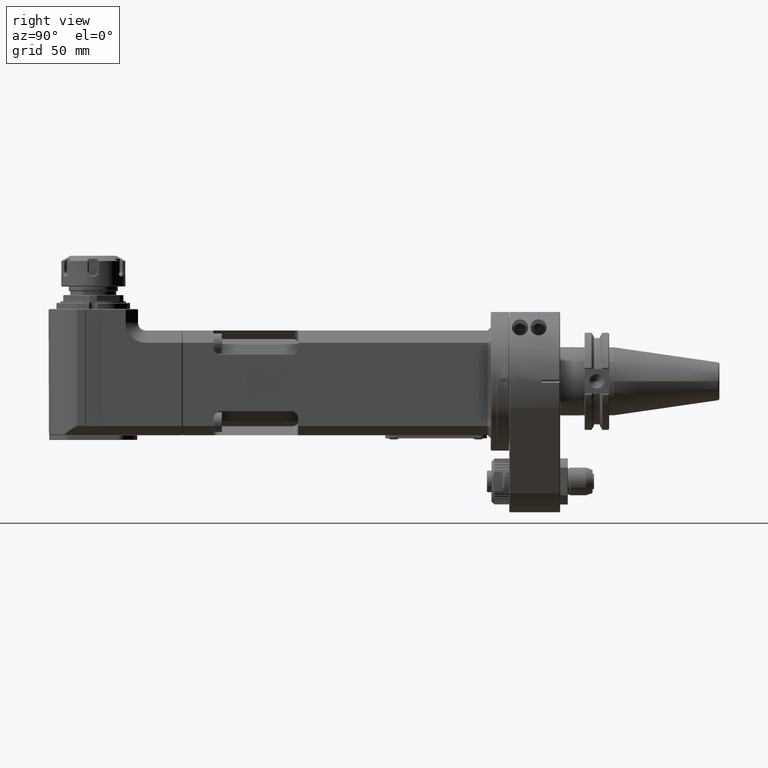
[diagram: clean part render]
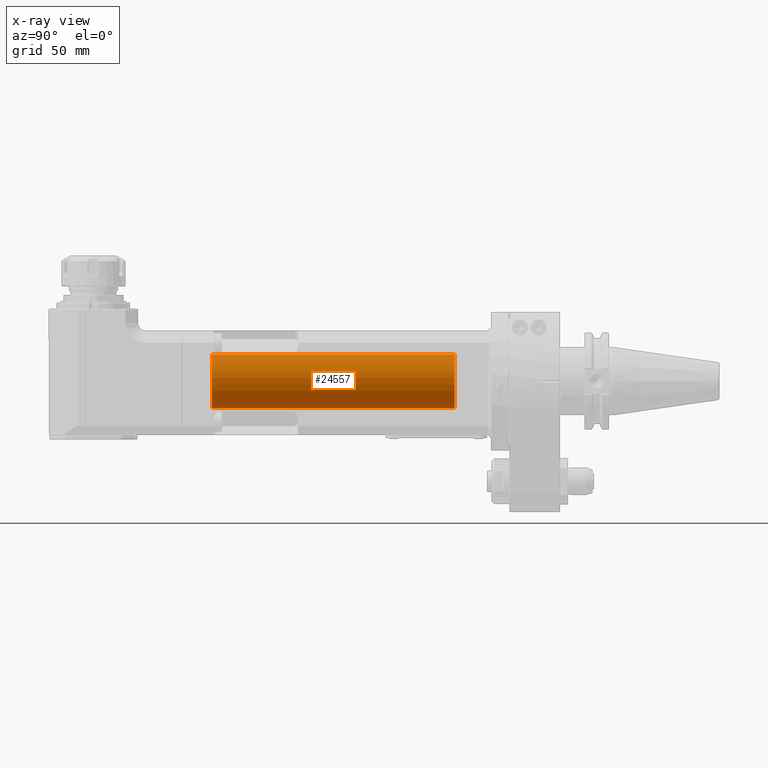
[diagram: x-ray — body ghosted, one internal face saturated and labeled with its STEP entity id]
A machine part, right view, then the same camera in x-ray: the body is ghosted and one INTERNAL B-rep face — a face not visible from any outside direction — is saturated and labeled: STEP entity #24557.
In plain terms, the highlighted cylindrical surface (bore or boss wall) has radius 17.5 mm, axis along (-0, 1, 0).
Its self-contained STEP definition (entity closure, byte-faithful):
#2266=FACE_OUTER_BOUND('',#3798,.T.);
#3798=EDGE_LOOP('',(#18141,#18142,#18143,#18144));
#5534=CIRCLE('',#26404,17.5);
#5535=CIRCLE('',#26406,17.5);
#6759=LINE('',#38608,#8792);
#8792=VECTOR('',#29944,17.5);
#10970=VERTEX_POINT('',#38604);
#10971=VERTEX_POINT('',#38607);
#13678=EDGE_CURVE('',#10970,#10970,#5534,.T.);
#13679=EDGE_CURVE('',#10970,#10971,#6759,.T.);
#13680=EDGE_CURVE('',#10971,#10971,#5535,.T.);
#18141=ORIENTED_EDGE('',*,*,#13678,.F.);
#18142=ORIENTED_EDGE('',*,*,#13679,.T.);
#18143=ORIENTED_EDGE('',*,*,#13680,.F.);
#18144=ORIENTED_EDGE('',*,*,#13679,.F.);
#24056=CYLINDRICAL_SURFACE('',#26405,17.5);
#24557=ADVANCED_FACE('',(#2266),#24056,.F.);
#26404=AXIS2_PLACEMENT_3D('',#38605,#29940,#29941);
#26405=AXIS2_PLACEMENT_3D('',#38606,#29942,#29943);
#26406=AXIS2_PLACEMENT_3D('',#38609,#29945,#29946);
#29940=DIRECTION('center_axis',(0.,1.,0.));
#29941=DIRECTION('ref_axis',(0.,0.,-1.));
#29942=DIRECTION('center_axis',(0.,1.,0.));
#29943=DIRECTION('ref_axis',(0.,0.,-1.));
#29944=DIRECTION('',(0.,1.,0.));
#29945=DIRECTION('center_axis',(0.,-1.,0.));
#29946=DIRECTION('ref_axis',(0.,0.,1.));
#38604=CARTESIAN_POINT('',(2.14313189850787E-15,-193.,17.5));
#38605=CARTESIAN_POINT('Origin',(0.,-193.,2.406431960325E-14));
#38606=CARTESIAN_POINT('Origin',(0.,-223.85,2.595333729093E-14));
#38607=CARTESIAN_POINT('',(2.14313189850787E-15,-35.5,17.5));
#38608=CARTESIAN_POINT('',(2.14313189850787E-15,-223.85,17.5));
#38609=CARTESIAN_POINT('Origin',(0.,-35.5,1.442022605996E-14));